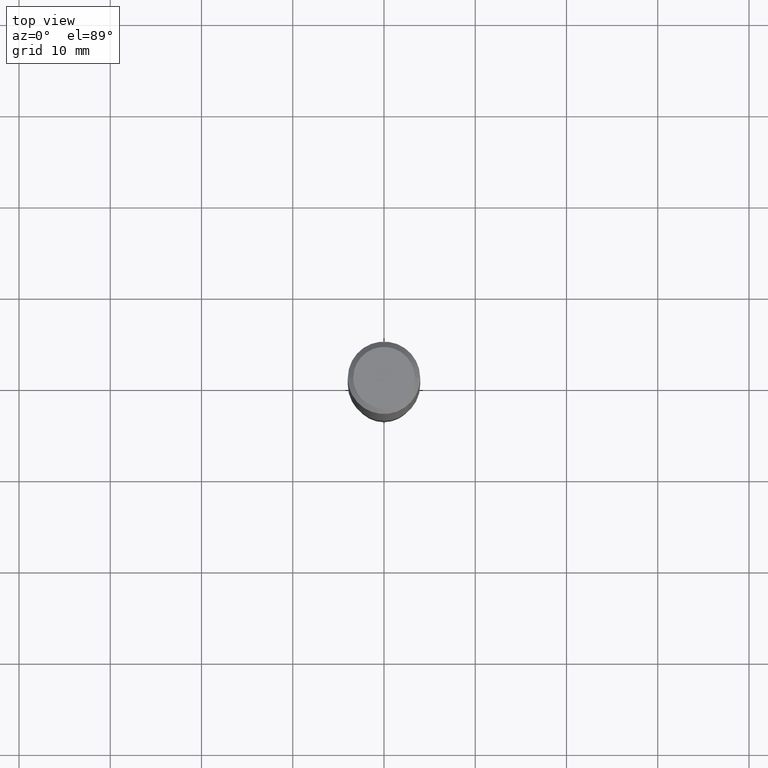
[diagram: clean part render]
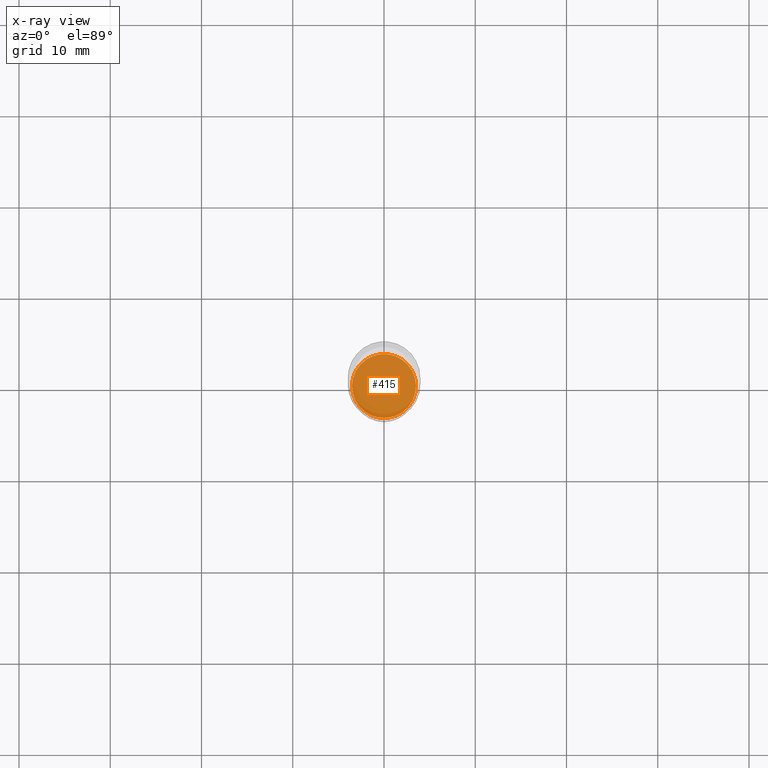
[diagram: x-ray — body ghosted, one internal face saturated and labeled with its STEP entity id]
A machine part, top view, then the same camera in x-ray: the body is ghosted and one INTERNAL B-rep face — a face not visible from any outside direction — is saturated and labeled: STEP entity #415.
In plain terms, the highlighted planar face has unit normal (-0, 0, 1).
Its self-contained STEP definition (entity closure, byte-faithful):
#4 = CIRCLE ( 'NONE', #292, 0.1380000000000000115 ) ;
#17 = AXIS2_PLACEMENT_3D ( 'NONE', #128, #473, #167 ) ;
#21 = CARTESIAN_POINT ( 'NONE',  ( -0.1380000000000000115, -6.312252054989704175E-15, -2.089500000000000135 ) ) ;
#31 = FACE_OUTER_BOUND ( 'NONE', #185, .T. ) ;
#76 = ORIENTED_EDGE ( 'NONE', *, *, #78, .F. ) ;
#78 = EDGE_CURVE ( 'NONE', #236, #306, #200, .T. ) ;
#100 = CARTESIAN_POINT ( 'NONE',  ( 5.109807070523843179E-29, -7.295450257512754504E-15, -2.089500000000000135 ) ) ;
#128 = CARTESIAN_POINT ( 'NONE',  ( 5.109807070523843179E-29, -7.295450257512754504E-15, -2.089500000000000135 ) ) ;
#132 = PLANE ( 'NONE',  #354 ) ;
#167 = DIRECTION ( 'NONE',  ( 1.000000000000000000, -6.982962677686269866E-15, 0.000000000000000000 ) ) ;
#178 = DIRECTION ( 'NONE',  ( -2.438088387897960049E-29, 3.491481338843145188E-15, 1.000000000000000000 ) ) ;
#180 = DIRECTION ( 'NONE',  ( 1.000000000000000000, -6.982962677686269866E-15, 0.000000000000000000 ) ) ;
#185 = EDGE_LOOP ( 'NONE', ( #76, #263 ) ) ;
#200 = CIRCLE ( 'NONE', #17, 0.1380000000000000115 ) ;
#236 = VERTEX_POINT ( 'NONE', #360 ) ;
#262 = DIRECTION ( 'NONE',  ( 1.000000000000000000, -6.982962677686265922E-15, 4.876176775795935793E-29 ) ) ;
#263 = ORIENTED_EDGE ( 'NONE', *, *, #420, .F. ) ;
#291 = DIRECTION ( 'NONE',  ( -2.445468806185136597E-29, 3.491481338843145583E-15, 1.000000000000000000 ) ) ;
#292 = AXIS2_PLACEMENT_3D ( 'NONE', #416, #291, #180 ) ;
#306 = VERTEX_POINT ( 'NONE', #21 ) ;
#354 = AXIS2_PLACEMENT_3D ( 'NONE', #100, #178, #262 ) ;
#360 = CARTESIAN_POINT ( 'NONE',  ( 0.1380000000000000115, -8.259099107033459183E-15, -2.089500000000000135 ) ) ;
#415 = ADVANCED_FACE ( 'NONE', ( #31 ), #132, .F. ) ;
#416 = CARTESIAN_POINT ( 'NONE',  ( 5.109807070523843179E-29, -7.295450257512754504E-15, -2.089500000000000135 ) ) ;
#420 = EDGE_CURVE ( 'NONE', #306, #236, #4, .T. ) ;
#473 = DIRECTION ( 'NONE',  ( -2.445468806185136597E-29, 3.491481338843145583E-15, 1.000000000000000000 ) ) ;